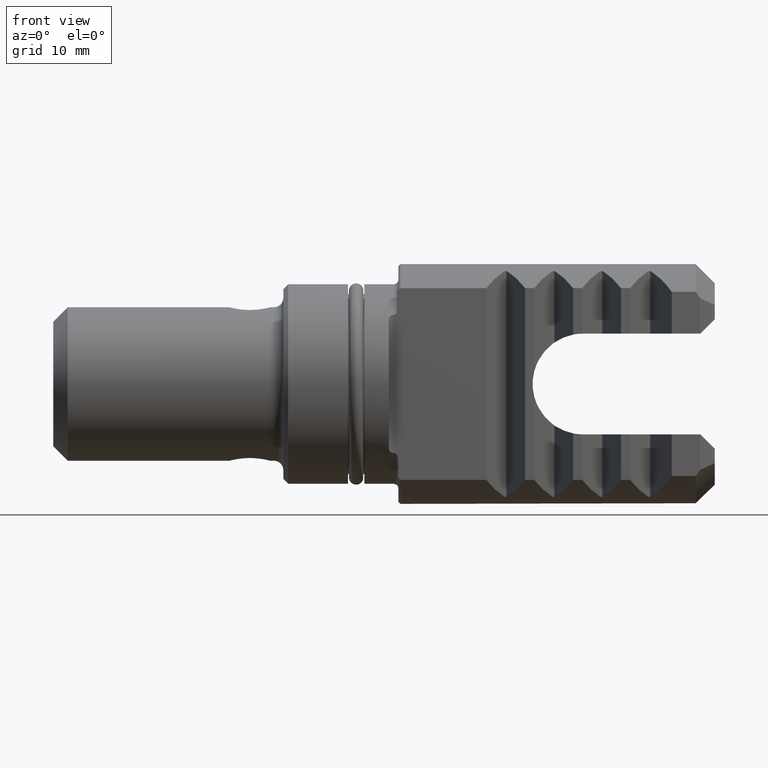
[diagram: clean part render]
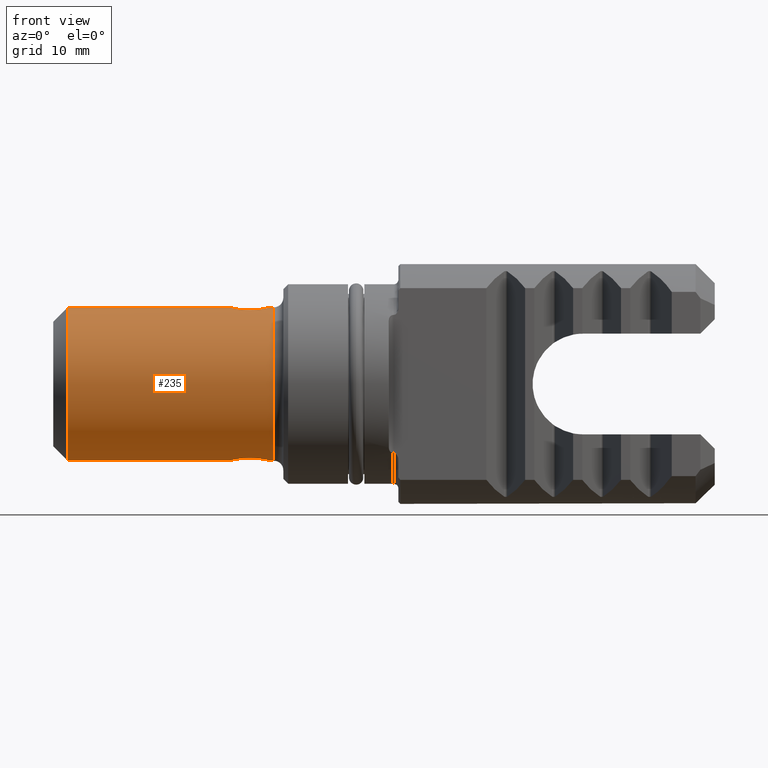
[diagram: same view with one face highlighted and labeled with its STEP entity id]
A machine part, front view. The second image highlights one B-rep face of the part: STEP entity #235.
In plain terms, the highlighted cylindrical surface (partial cylindrical patch) has radius 8 mm, axis along (-1, -0, -0).
Its self-contained STEP definition (entity closure, byte-faithful):
#3 = VECTOR ( 'NONE', #3049, 1000.000000000000000 ) ;
#11 = ORIENTED_EDGE ( 'NONE', *, *, #1288, .T. ) ;
#12 = CARTESIAN_POINT ( 'NONE',  ( 18.40000000000000900, -0.1374233338410860400, 8.000000000000001800 ) ) ;
#24 = LINE ( 'NONE', #1328, #44 ) ;
#44 = VECTOR ( 'NONE', #1372, 1000.000000000000000 ) ;
#97 = LINE ( 'NONE', #4124, #2650 ) ;
#115 = EDGE_CURVE ( 'NONE', #3405, #449, #3752, .T. ) ;
#235 = ADVANCED_FACE ( 'NONE', ( #2106 ), #1345, .T. ) ;
#284 = EDGE_CURVE ( 'NONE', #1871, #1436, #1102, .T. ) ;
#285 = AXIS2_PLACEMENT_3D ( 'NONE', #2411, #2400, #2399 ) ;
#411 = B_SPLINE_CURVE_WITH_KNOTS ( 'NONE', 3,
 ( #3363, #3507, #3357, #3397, #3876, #3864, #4067, #4188, #4135, #3514, #2156, #3429, #3529, #1378, #2852, #3404, #3951, #1872, #2060, #2422, #2680, #3527, #3475, #3756, #3726, #3532, #3524, #3442, #12, #3522 ),
 .UNSPECIFIED., .F., .F.,
 ( 4, 2, 2, 2, 2, 2, 2, 2, 2, 2, 2, 2, 2, 2, 4 ),
 ( 6.128694326633877900E-019, 0.0004121602064973014200, 0.0008243204129946020800, 0.001236480619491902700, 0.001648640825989203300, 0.002472961238983803700, 0.002885121445481109100, 0.003297281651978414400, 0.003709441858475719300, 0.004121602064973024600, 0.004945922477967636100, 0.005358082684464938000, 0.005770242890962240700, 0.006182403097459543400, 0.006594563303956846100 ),
 .UNSPECIFIED. ) ;
#449 = VERTEX_POINT ( 'NONE', #2702 ) ;
#574 = ORIENTED_EDGE ( 'NONE', *, *, #2625, .T. ) ;
#647 = CARTESIAN_POINT ( 'NONE',  ( -32.53304341604300700, 0.0000000000000000000, 8.000000000000000000 ) ) ;
#793 = AXIS2_PLACEMENT_3D ( 'NONE', #2911, #2906, #2903 ) ;
#932 = VECTOR ( 'NONE', #2812, 1000.000000000000000 ) ;
#1102 = CIRCLE ( 'NONE', #285, 8.000000000000000000 ) ;
#1118 = LINE ( 'NONE', #647, #3 ) ;
#1164 = EDGE_CURVE ( 'NONE', #2026, #449, #3705, .T. ) ;
#1204 = AXIS2_PLACEMENT_3D ( 'NONE', #2473, #2065, #2471 ) ;
#1250 = VERTEX_POINT ( 'NONE', #3387 ) ;
#1288 = EDGE_CURVE ( 'NONE', #3061, #3334, #411, .T. ) ;
#1328 = CARTESIAN_POINT ( 'NONE',  ( -32.53304341604300700, 9.797174393178825700E-016, -8.000000000000000000 ) ) ;
#1345 = CYLINDRICAL_SURFACE ( 'NONE', #1204, 8.000000000000000000 ) ;
#1353 = EDGE_CURVE ( 'NONE', #1250, #3061, #97, .T. ) ;
#1372 = DIRECTION ( 'NONE',  ( -1.000000000000000000, -0.0000000000000000000, -0.0000000000000000000 ) ) ;
#1378 = CARTESIAN_POINT ( 'NONE',  ( 20.77522693932892800, -2.086479245224852200, 7.723172240021958700 ) ) ;
#1436 = VERTEX_POINT ( 'NONE', #2517 ) ;
#1457 = ORIENTED_EDGE ( 'NONE', *, *, #1658, .T. ) ;
#1617 = CARTESIAN_POINT ( 'NONE',  ( 18.40000000000000900, 9.797139056269925500E-016, -8.000000000000000000 ) ) ;
#1649 = CIRCLE ( 'NONE', #793, 8.000000000000000000 ) ;
#1658 = EDGE_CURVE ( 'NONE', #3334, #1436, #1118, .T. ) ;
#1690 = CARTESIAN_POINT ( 'NONE',  ( 18.40000000000000900, 3.533692958606659700E-021, 8.000000000000000000 ) ) ;
#1737 = CARTESIAN_POINT ( 'NONE',  ( 18.40000000000001300, -0.2747721842353277300, -8.000000000000001800 ) ) ;
#1742 = CARTESIAN_POINT ( 'NONE',  ( 18.40000000000000900, 9.797139056269925500E-016, -8.000000000000000000 ) ) ;
#1748 = CARTESIAN_POINT ( 'NONE',  ( 18.45547461848491400, -0.5522172486689088700, -7.984967671293197200 ) ) ;
#1751 = CARTESIAN_POINT ( 'NONE',  ( 18.61301228399698400, -0.9316836056303751100, -7.946579692504870200 ) ) ;
#1758 = CARTESIAN_POINT ( 'NONE',  ( 18.67881449767205000, -1.054542131101650100, -7.931026854732670600 ) ) ;
#1760 = CARTESIAN_POINT ( 'NONE',  ( 18.83129020089083700, -1.282257129640910900, -7.897408608540160900 ) ) ;
#1768 = CARTESIAN_POINT ( 'NONE',  ( 18.91777441658345200, -1.387555933982505900, -7.879365718881535600 ) ) ;
#1775 = CARTESIAN_POINT ( 'NONE',  ( 19.11135299889151500, -1.581268090192272400, -7.842786929960250400 ) ) ;
#1776 = CARTESIAN_POINT ( 'NONE',  ( 19.21867530778266800, -1.669372831980127300, -7.824272180501356600 ) ) ;
#1780 = CARTESIAN_POINT ( 'NONE',  ( 19.44534951060743900, -1.821074123769599100, -7.790361342226530500 ) ) ;
#1782 = CARTESIAN_POINT ( 'NONE',  ( 19.56571545480755200, -1.885808808087936100, -7.774749361559105200 ) ) ;
#1786 = CARTESIAN_POINT ( 'NONE',  ( 19.82134295260699400, -1.992131291875940800, -7.748187879217595300 ) ) ;
#1790 = CARTESIAN_POINT ( 'NONE',  ( 19.95328529215839800, -2.032214475099919600, -7.737627550238236100 ) ) ;
#1792 = CARTESIAN_POINT ( 'NONE',  ( 20.22212175594147300, -2.086043222480042900, -7.723289419214880000 ) ) ;
#1799 = CARTESIAN_POINT ( 'NONE',  ( 20.36097367361954000, -2.099964149595626900, -7.719465692118083300 ) ) ;
#1800 = CARTESIAN_POINT ( 'NONE',  ( 20.63794116437250300, -2.100035710216683800, -7.719446224774784100 ) ) ;
#1805 = CARTESIAN_POINT ( 'NONE',  ( 20.77463868738167100, -2.086505702315784500, -7.723164203319117700 ) ) ;
#1813 = CARTESIAN_POINT ( 'NONE',  ( 21.04454405249537500, -2.032831579175935500, -7.737465161661870800 ) ) ;
#1817 = CARTESIAN_POINT ( 'NONE',  ( 21.17856893158756300, -1.992067345823385300, -7.748199926011506200 ) ) ;
#1820 = CARTESIAN_POINT ( 'NONE',  ( 21.55835253522319700, -1.834405171174974300, -7.787598813686327200 ) ) ;
#1822 = CARTESIAN_POINT ( 'NONE',  ( 21.79137783811344800, -1.678262621163672900, -7.824437994006113500 ) ) ;
#1833 = CARTESIAN_POINT ( 'NONE',  ( 22.08049700701360900, -1.389454838205431000, -7.879023676160508100 ) ) ;
#1834 = CARTESIAN_POINT ( 'NONE',  ( 22.16832438919032500, -1.282812914709318600, -7.897324493646371100 ) ) ;
#1837 = CARTESIAN_POINT ( 'NONE',  ( 22.32138378370280000, -1.054265789152220700, -7.931069712082674500 ) ) ;
#1839 = CARTESIAN_POINT ( 'NONE',  ( 22.38588250816931700, -0.9339176490831996300, -7.946316395980267600 ) ) ;
#1842 = CARTESIAN_POINT ( 'NONE',  ( 22.49120249333855200, -0.6810782924234315400, -7.971968314029069800 ) ) ;
#1843 = CARTESIAN_POINT ( 'NONE',  ( 22.53214658214576700, -0.5471801004683384300, -7.982414190590118300 ) ) ;
#1849 = CARTESIAN_POINT ( 'NONE',  ( 22.58625950905240000, -0.2766713837095030000, -7.996361379897690500 ) ) ;
#1853 = CARTESIAN_POINT ( 'NONE',  ( 22.60000000000001200, -0.1393722306228890000, -8.000000000000000000 ) ) ;
#1867 = EDGE_LOOP ( 'NONE', ( #3574, #574, #4083, #11, #1457, #2781, #2190, #3528 ) ) ;
#1871 = VERTEX_POINT ( 'NONE', #4007 ) ;
#1872 = CARTESIAN_POINT ( 'NONE',  ( 19.95353999830803100, -2.032316871758079700, 7.737600838886638000 ) ) ;
#1962 = CARTESIAN_POINT ( 'NONE',  ( 22.60000000000001200, 6.310536368554355600E-016, -8.000000000000000000 ) ) ;
#2026 = VERTEX_POINT ( 'NONE', #2939 ) ;
#2060 = CARTESIAN_POINT ( 'NONE',  ( 19.82232636279148300, -1.992440554174371500, 7.748106723405766300 ) ) ;
#2065 = DIRECTION ( 'NONE',  ( -1.000000000000000000, -0.0000000000000000000, -0.0000000000000000000 ) ) ;
#2106 = FACE_OUTER_BOUND ( 'NONE', #1867, .T. ) ;
#2140 = CARTESIAN_POINT ( 'NONE',  ( 22.60000000000001200, -6.310536368554355600E-016, 8.000000000000000000 ) ) ;
#2156 = CARTESIAN_POINT ( 'NONE',  ( 21.55828591103597700, -1.834329096533802200, 7.787613770603765100 ) ) ;
#2190 = ORIENTED_EDGE ( 'NONE', *, *, #3544, .F. ) ;
#2399 = DIRECTION ( 'NONE',  ( 0.0000000000000000000, 0.0000000000000000000, 1.000000000000000000 ) ) ;
#2400 = DIRECTION ( 'NONE',  ( -1.000000000000000000, -0.0000000000000000000, -0.0000000000000000000 ) ) ;
#2411 = CARTESIAN_POINT ( 'NONE',  ( 1.500000000000001300, 0.0000000000000000000, 0.0000000000000000000 ) ) ;
#2422 = CARTESIAN_POINT ( 'NONE',  ( 19.43979698134532800, -1.833633889624626900, 7.787791432468986300 ) ) ;
#2471 = DIRECTION ( 'NONE',  ( 0.0000000000000000000, 0.0000000000000000000, 1.000000000000000000 ) ) ;
#2473 = CARTESIAN_POINT ( 'NONE',  ( -32.53304341604300700, 0.0000000000000000000, 0.0000000000000000000 ) ) ;
#2517 = CARTESIAN_POINT ( 'NONE',  ( 1.500000000000001300, 9.797174393178825700E-016, 8.000000000000000000 ) ) ;
#2625 = EDGE_CURVE ( 'NONE', #2026, #1250, #1649, .T. ) ;
#2650 = VECTOR ( 'NONE', #4010, 1000.000000000000000 ) ;
#2680 = CARTESIAN_POINT ( 'NONE',  ( 19.20903709013403900, -1.678981696055098300, 7.824331901024685900 ) ) ;
#2702 = CARTESIAN_POINT ( 'NONE',  ( 22.60000000000001200, 6.310536368554355600E-016, -8.000000000000000000 ) ) ;
#2781 = ORIENTED_EDGE ( 'NONE', *, *, #284, .F. ) ;
#2812 = DIRECTION ( 'NONE',  ( -1.000000000000000000, -0.0000000000000000000, -0.0000000000000000000 ) ) ;
#2852 = CARTESIAN_POINT ( 'NONE',  ( 20.63854952912966200, -2.099940923902387600, 7.719472010432054000 ) ) ;
#2903 = DIRECTION ( 'NONE',  ( 0.0000000000000000000, 0.0000000000000000000, 1.000000000000000000 ) ) ;
#2906 = DIRECTION ( 'NONE',  ( -1.000000000000000000, -0.0000000000000000000, -0.0000000000000000000 ) ) ;
#2911 = CARTESIAN_POINT ( 'NONE',  ( 23.00000000000000000, 0.0000000000000000000, 0.0000000000000000000 ) ) ;
#2939 = CARTESIAN_POINT ( 'NONE',  ( 23.00000000000000000, 9.797174393178825700E-016, -8.000000000000000000 ) ) ;
#3049 = DIRECTION ( 'NONE',  ( -1.000000000000000000, -0.0000000000000000000, -0.0000000000000000000 ) ) ;
#3061 = VERTEX_POINT ( 'NONE', #2140 ) ;
#3241 = CARTESIAN_POINT ( 'NONE',  ( -32.53304341604300700, 9.797174393178825700E-016, -8.000000000000000000 ) ) ;
#3334 = VERTEX_POINT ( 'NONE', #1690 ) ;
#3357 = CARTESIAN_POINT ( 'NONE',  ( 22.58625652208724300, -0.2763712001295117200, 7.996361191672501300 ) ) ;
#3363 = CARTESIAN_POINT ( 'NONE',  ( 22.60000000000001200, -6.310536368554355600E-016, 8.000000000000000000 ) ) ;
#3387 = CARTESIAN_POINT ( 'NONE',  ( 23.00000000000000000, 0.0000000000000000000, 8.000000000000000000 ) ) ;
#3397 = CARTESIAN_POINT ( 'NONE',  ( 22.53251881708767700, -0.5456322703039679900, 7.982509553614704600 ) ) ;
#3404 = CARTESIAN_POINT ( 'NONE',  ( 20.36324713222954600, -2.100058691812829400, 7.719439972864955200 ) ) ;
#3405 = VERTEX_POINT ( 'NONE', #1617 ) ;
#3429 = CARTESIAN_POINT ( 'NONE',  ( 21.17962037645666500, -1.991682509808441400, 7.748298113053288600 ) ) ;
#3442 = CARTESIAN_POINT ( 'NONE',  ( 18.41375721663063200, -0.2768390051325772000, 7.996356913251426900 ) ) ;
#3475 = CARTESIAN_POINT ( 'NONE',  ( 18.83109591877157000, -1.281959100331897100, 7.897451786953193500 ) ) ;
#3507 = CARTESIAN_POINT ( 'NONE',  ( 22.60000000000001600, -0.1394100107357490200, 8.000000000000000000 ) ) ;
#3514 = CARTESIAN_POINT ( 'NONE',  ( 21.79158029358475800, -1.678144714078307200, 7.824468526627768500 ) ) ;
#3522 = CARTESIAN_POINT ( 'NONE',  ( 18.40000000000000900, 3.533692958606659700E-021, 8.000000000000000000 ) ) ;
#3524 = CARTESIAN_POINT ( 'NONE',  ( 18.46793517763745000, -0.5475046517064728900, 7.982393273650859400 ) ) ;
#3527 = CARTESIAN_POINT ( 'NONE',  ( 18.91754388816321600, -1.387344170238522300, 7.879407557778398200 ) ) ;
#3528 = ORIENTED_EDGE ( 'NONE', *, *, #115, .T. ) ;
#3529 = CARTESIAN_POINT ( 'NONE',  ( 21.04661187136842700, -2.032328952449762700, 7.737598084601856400 ) ) ;
#3532 = CARTESIAN_POINT ( 'NONE',  ( 18.50789057483812900, -0.6784727450078703600, 7.972195225585062800 ) ) ;
#3544 = EDGE_CURVE ( 'NONE', #3405, #1871, #24, .T. ) ;
#3574 = ORIENTED_EDGE ( 'NONE', *, *, #1164, .F. ) ;
#3705 = LINE ( 'NONE', #3241, #932 ) ;
#3726 = CARTESIAN_POINT ( 'NONE',  ( 18.61310614467257800, -0.9319102994735479800, 7.946556812500296600 ) ) ;
#3752 = B_SPLINE_CURVE_WITH_KNOTS ( 'NONE', 3,
 ( #1742, #1737, #1748, #1751, #1758, #1760, #1768, #1775, #1776, #1780, #1782, #1786, #1790, #1792, #1799, #1800, #1805, #1813, #1817, #1820, #1822, #1833, #1834, #1837, #1839, #1842, #1843, #1849, #1853, #1962 ),
 .UNSPECIFIED., .F., .F.,
 ( 4, 2, 2, 2, 2, 2, 2, 2, 2, 2, 2, 2, 2, 2, 4 ),
 ( 0.006594563303956845300, 0.007418660326119824400, 0.007830708837201313900, 0.008242757348282803500, 0.008654805859364293100, 0.009066854370445780900, 0.009478902881527270400, 0.009890951392608760000, 0.01030299990369024800, 0.01071504841477173600, 0.01153914543693471500, 0.01195119394801620300, 0.01236324245909769000, 0.01277529097017917800, 0.01318733948126066600 ),
 .UNSPECIFIED. ) ;
#3756 = CARTESIAN_POINT ( 'NONE',  ( 18.67908374910756200, -1.054952119529842800, 7.930967147055483200 ) ) ;
#3864 = CARTESIAN_POINT ( 'NONE',  ( 22.38617139123201100, -0.9334268789031621200, 7.946383901818296500 ) ) ;
#3876 = CARTESIAN_POINT ( 'NONE',  ( 22.49183211651665100, -0.6793622560709473600, 7.972124546089453600 ) ) ;
#3951 = CARTESIAN_POINT ( 'NONE',  ( 20.22337981812645700, -2.086243436337666100, 7.723235522338402600 ) ) ;
#4007 = CARTESIAN_POINT ( 'NONE',  ( 1.500000000000001300, 0.0000000000000000000, -8.000000000000000000 ) ) ;
#4010 = DIRECTION ( 'NONE',  ( -1.000000000000000000, -0.0000000000000000000, -0.0000000000000000000 ) ) ;
#4067 = CARTESIAN_POINT ( 'NONE',  ( 22.32160339500335100, -1.053824924064441500, 7.931123037480538200 ) ) ;
#4083 = ORIENTED_EDGE ( 'NONE', *, *, #1353, .T. ) ;
#4124 = CARTESIAN_POINT ( 'NONE',  ( -32.53304341604300700, 0.0000000000000000000, 8.000000000000000000 ) ) ;
#4135 = CARTESIAN_POINT ( 'NONE',  ( 22.08088377103230800, -1.389026218805133900, 7.879100552402306300 ) ) ;
#4188 = CARTESIAN_POINT ( 'NONE',  ( 22.16917229680493800, -1.281658980714480300, 7.897506559882545600 ) ) ;